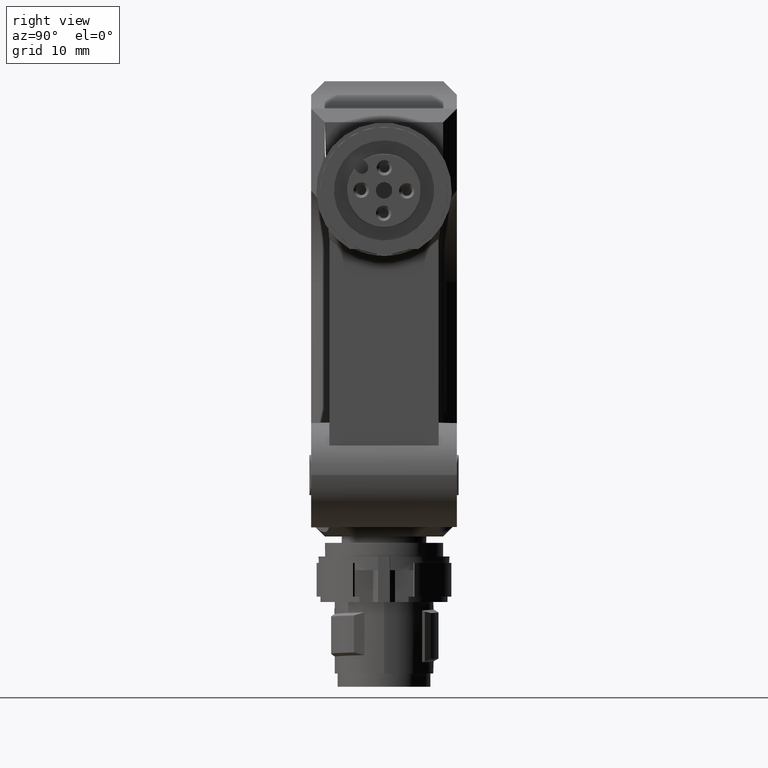
[diagram: clean part render]
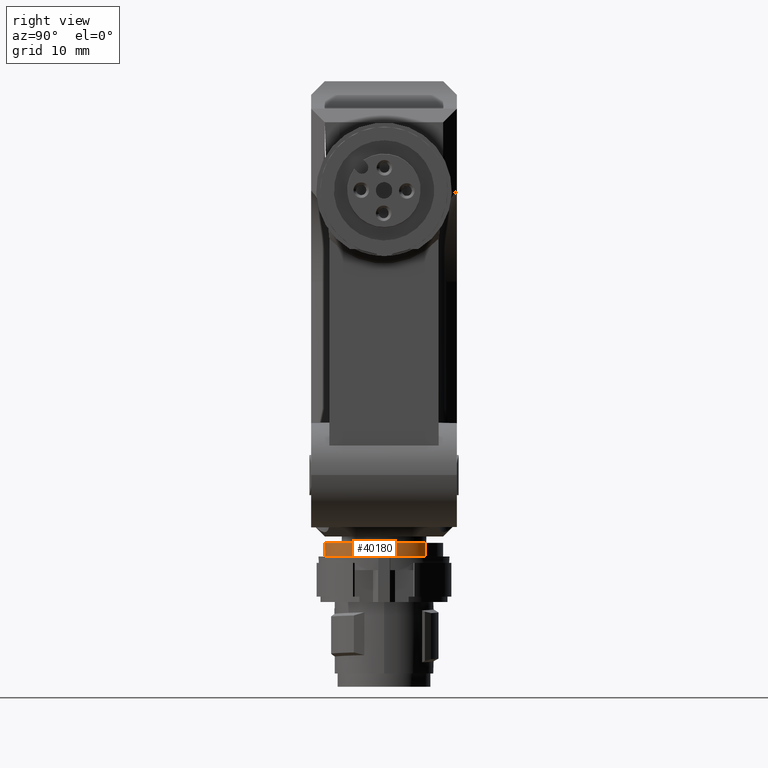
[diagram: same view with one face highlighted and labeled with its STEP entity id]
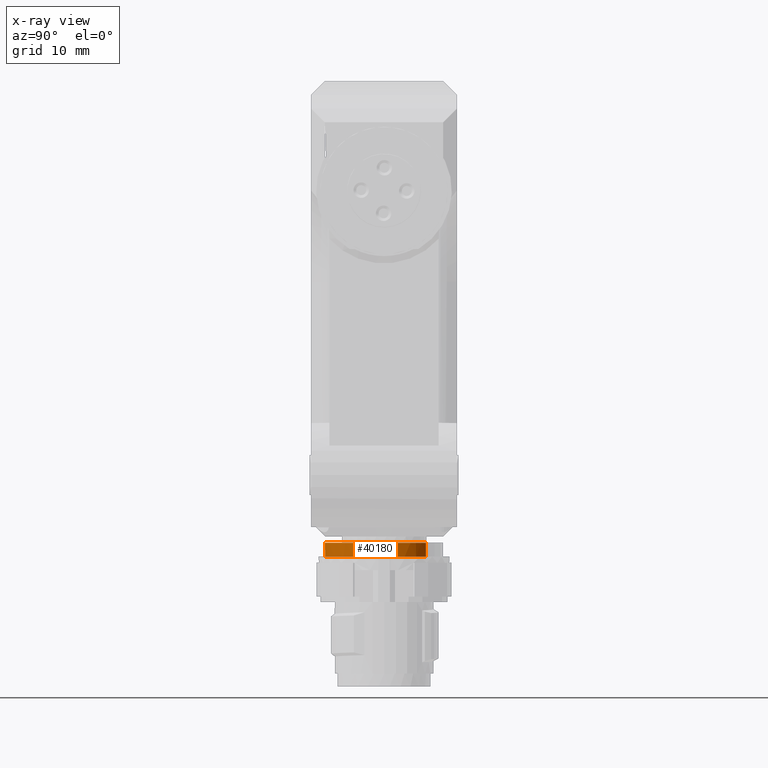
[diagram: x-ray of the same camera — body ghosted, the highlighted face saturated]
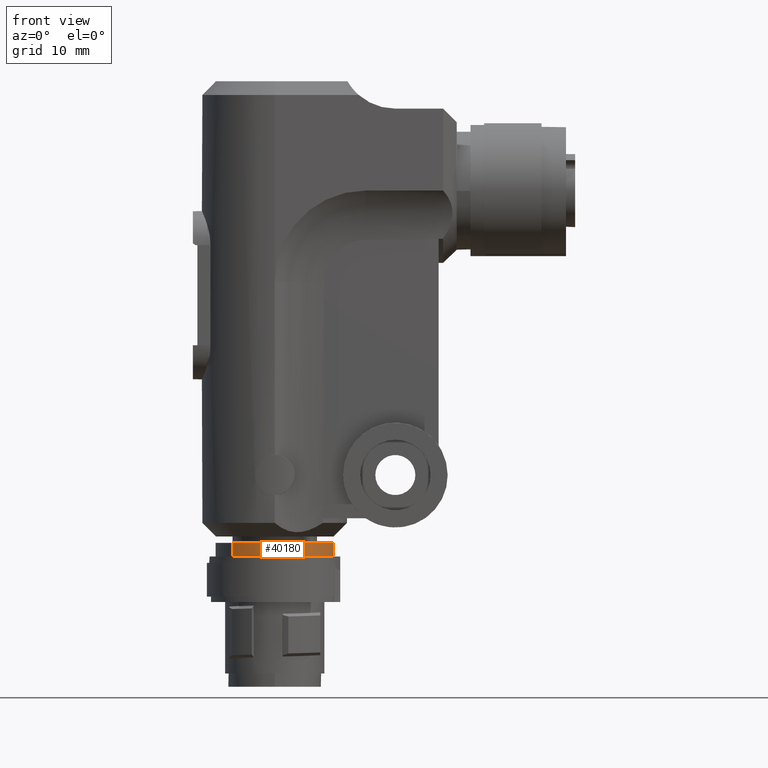
[diagram: same view with one face highlighted and labeled with its STEP entity id]
A machine part, right view. The second image highlights one B-rep face of the part: STEP entity #40180.
The next image is the same camera in x-ray: the body ghosted, the highlighted face saturated — about 0% of this face is hidden behind the body in this view.
A second angle (front view) of the same face is appended — the face is thin or edge-on in the first view.
In plain terms, the highlighted cylindrical surface (partial cylindrical patch) has radius 6.5 mm, axis along (0, -0, 1).
Its self-contained STEP definition (entity closure, byte-faithful):
#39550=CARTESIAN_POINT('',(-1.83320025826106E-12,2.32258656751583E-12,
-0.700000000000566));
#39560=DIRECTION('',(1.22124532708767E-15,3.12250225675825E-16,1.));
#39570=DIRECTION('',(-0.707106781186547,0.707106781186548,
6.66133814775094E-16));
#39580=AXIS2_PLACEMENT_3D('',#39550,#39560,#39570);
#39590=CIRCLE('',#39580,6.5);
#39600=CARTESIAN_POINT('',(-4.5961940777144,4.59619407771488,
-0.700000000000562));
#39610=VERTEX_POINT('',#39600);
#39620=CARTESIAN_POINT('',(4.59619407771072,-4.59619407771024,
-0.700000000000571));
#39630=VERTEX_POINT('',#39620);
#39660=CARTESIAN_POINT('',(-2.89723909885841,5.81859137627689,
-0.700000000000568));
#39670=VERTEX_POINT('',#39660);
#39680=EDGE_CURVE('',#39670,#39610,#39590,.T.);
#39700=EDGE_CURVE('',#39630,#39670,#39590,.T.);
#39820=CARTESIAN_POINT('',(-1.84030568561866E-12,2.32214247830598E-12,
-2.20000000000015));
#39830=DIRECTION('',(1.22124532708767E-15,3.12250225675825E-16,1.));
#39840=DIRECTION('',(-0.707106781186547,0.707106781186548,
6.66133814775094E-16));
#39850=AXIS2_PLACEMENT_3D('',#39820,#39830,#39840);
#39860=CYLINDRICAL_SURFACE('',#39850,6.5);
#39870=CARTESIAN_POINT('',(4.59619407771072,-4.59619407771024,
-2.20000000000015));
#39880=DIRECTION('',(1.22124532708767E-15,3.12250225675825E-16,1.));
#39890=VECTOR('',#39880,1.);
#39900=LINE('',#39870,#39890);
#39910=CARTESIAN_POINT('',(4.59619407771072,-4.59619407771024,
-2.20000000000016));
#39920=VERTEX_POINT('',#39910);
#39930=EDGE_CURVE('',#39920,#39630,#39900,.T.);
#39940=ORIENTED_EDGE('',*,*,#39930,.F.);
#39950=ORIENTED_EDGE('',*,*,#39700,.F.);
#39960=ORIENTED_EDGE('',*,*,#39680,.F.);
#39970=CARTESIAN_POINT('',(-4.5961940777144,4.59619407771488,
-2.20000000000014));
#39980=DIRECTION('',(1.22124532708767E-15,3.12250225675825E-16,1.));
#39990=VECTOR('',#39980,1.);
#40000=LINE('',#39970,#39990);
#40010=CARTESIAN_POINT('',(-4.5961940777144,4.59619407771488,
-2.20000000000015));
#40020=VERTEX_POINT('',#40010);
#40030=EDGE_CURVE('',#40020,#39610,#40000,.T.);
#40040=ORIENTED_EDGE('',*,*,#40030,.T.);
#40050=CARTESIAN_POINT('',(-1.84030568561866E-12,2.32169838909613E-12,
-2.20000000000016));
#40060=DIRECTION('',(1.22124532708767E-15,3.12250225675825E-16,1.));
#40070=DIRECTION('',(-0.707106781186547,0.707106781186548,
6.10622663543836E-16));
#40080=AXIS2_PLACEMENT_3D('',#40050,#40060,#40070);
#40090=CIRCLE('',#40080,6.5);
#40100=CARTESIAN_POINT('',(0.416925106192366,6.48661494586006,
-2.20000000000015));
#40110=VERTEX_POINT('',#40100);
#40120=EDGE_CURVE('',#40110,#40020,#40090,.T.);
#40130=ORIENTED_EDGE('',*,*,#40120,.T.);
#40140=EDGE_CURVE('',#39920,#40110,#40090,.T.);
#40150=ORIENTED_EDGE('',*,*,#40140,.T.);
#40160=EDGE_LOOP('',(#40150,#40130,#40040,#39960,#39950,#39940));
#40170=FACE_OUTER_BOUND('',#40160,.T.);
#40180=ADVANCED_FACE('',(#40170),#39860,.T.);